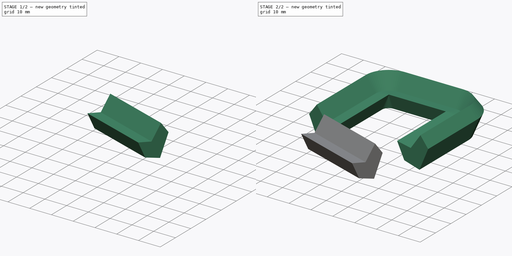
[diagram: build sequence overview — one tinted view per stage of 2, left to right]
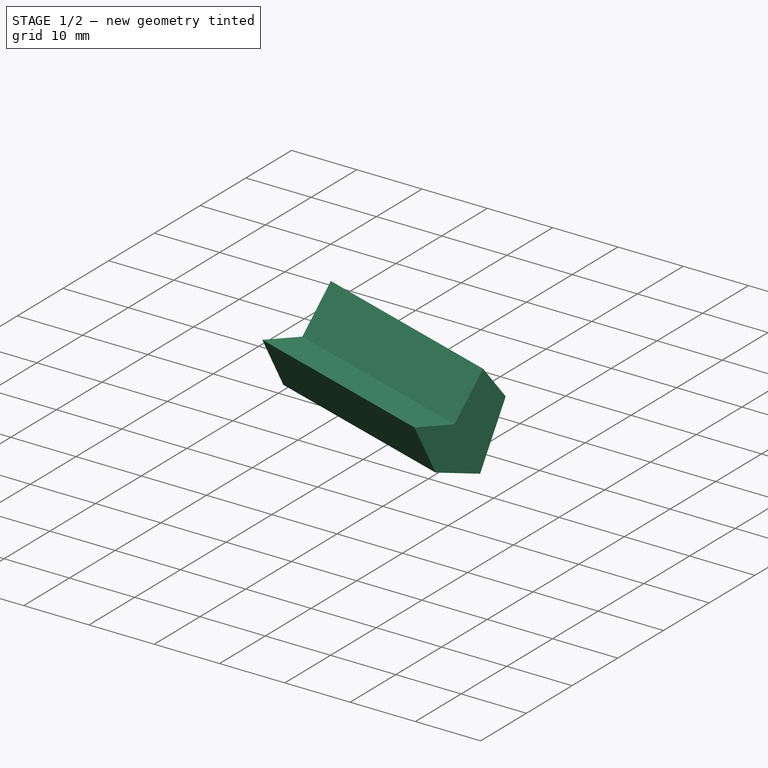
[diagram: stage 1 of 2 — iso view after this stage's code; geometry added in this stage tinted green]
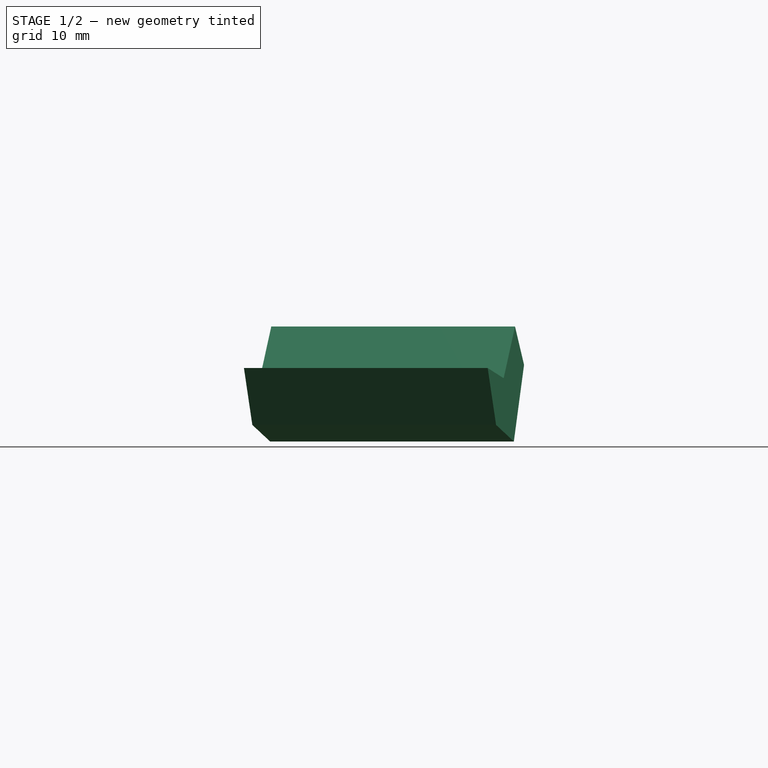
[diagram: stage 1 of 2 — front view after this stage's code; geometry added in this stage tinted green]
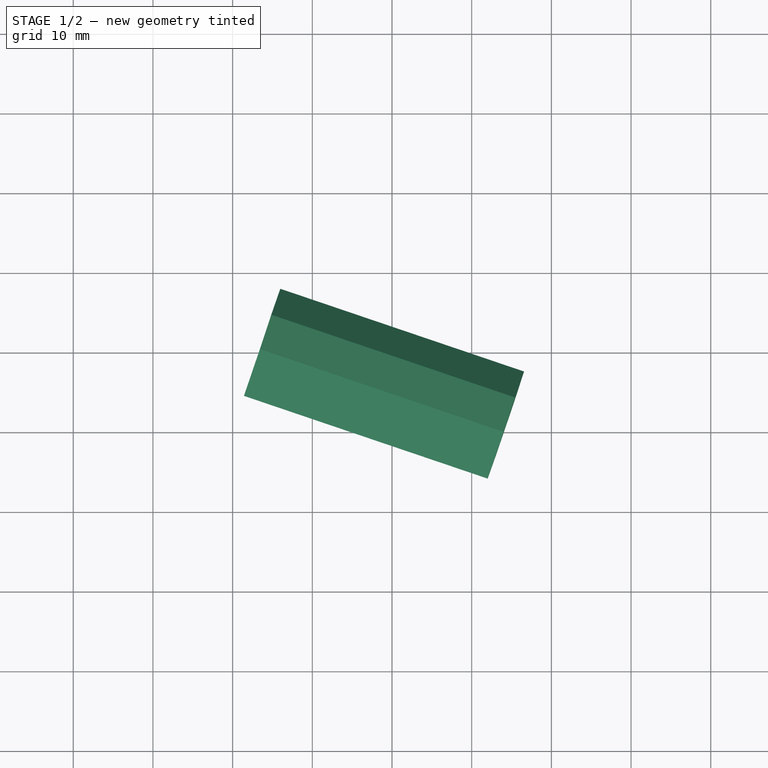
[diagram: stage 1 of 2 — top view after this stage's code; geometry added in this stage tinted green]
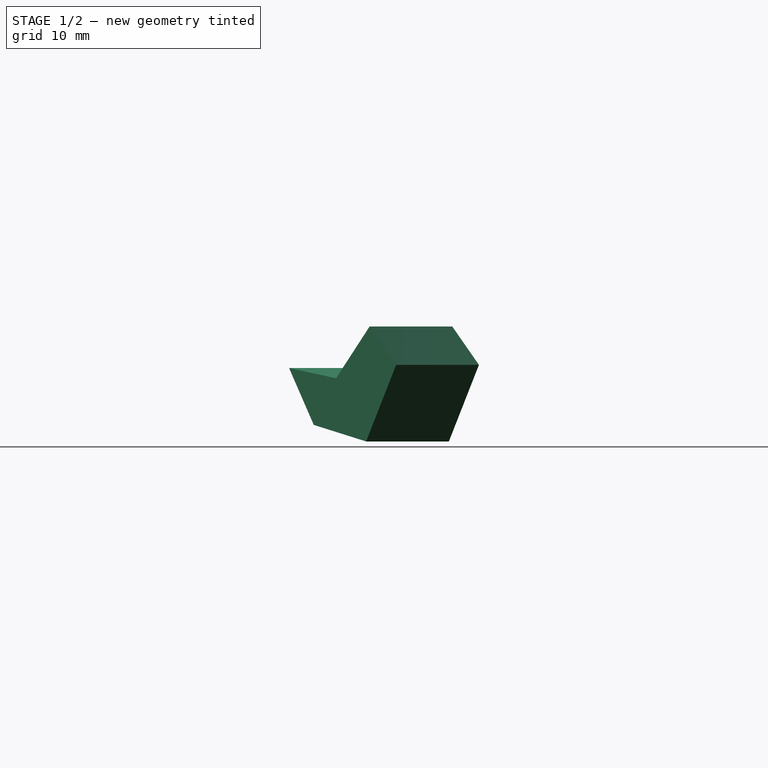
[diagram: stage 1 of 2 — right view after this stage's code; geometry added in this stage tinted green]
FCSTD DOCUMENT  (FreeCAD 0.21RUnknown)
Label: part30
License: All rights reserved
LicenseURL: http://en.wikipedia.org/wiki/All_rights_reserved
objects: Sketcher::SketchObject×4, Part::Part2DObjectPython×2, PartDesign::AdditivePipe×2, PartDesign::Body×2, App::DocumentObjectGroup×1
note: 12 computed .brp shape members not serialized (recipe doc carries the construction recipe); baked Part::Feature solids carry a one-line shape summary decoded from their .brp

FEATURE [PartDesign::Body] Body
  Group = -> [Sketch002,Clone2D,AdditivePipe]
  Origin = -> Origin
  Tip = -> AdditivePipe
FEATURE [Sketcher::SketchObject] Sketch003
  FullyConstrained = false
  MapMode = 5
  Support = -> [XY_Plane001]
  sketch-geometry (1):
    g0: LineSegment StartX=4.11143 StartY=-7.61421 StartZ=0 EndX=34.7007 EndY=-17.9995 EndZ=0
FEATURE [Part::Part2DObjectPython] Clone2D001  label="Profile1 (2D)001"  # Draft 2D object (typed FeaturePython)
  Fuse = false
  MapMode = 7
  Objects = -> [Sketch]
  Placement = pos=(4.11143,-7.61421,0) rot=(-0.451975,0.630761,0.630761;3.99058rad)
  Scale = (1,1,1)
  Support = -> [Sketch003]
FEATURE [PartDesign::AdditivePipe] AdditivePipe001
  AuxilleryCurvelinear = true
  AuxillerySpineTangent = false
  Binormal = (0,0,0)
  Mode = 0
  Profile = -> Clone2D001
  Spine = -> Sketch003
  SpineTangent = false
  Transformation = 0
  Transition = 0
FEATURE [PartDesign::Body] Body001
  Group = -> [Sketch003,Clone2D001,AdditivePipe001]
  Origin = -> Origin001
  Tip = -> AdditivePipe001
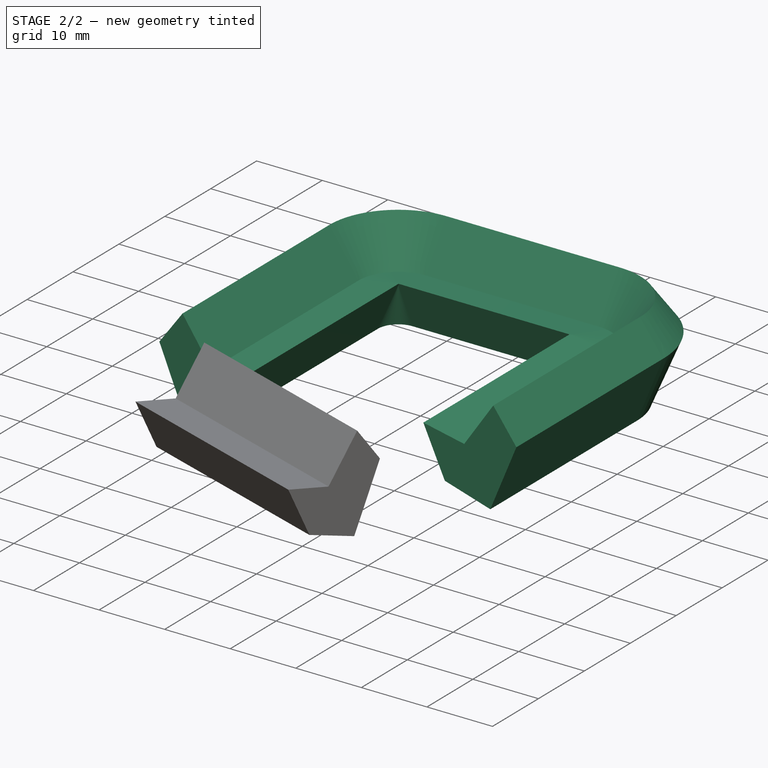
[diagram: stage 2 of 2 — iso view after this stage's code; geometry added in this stage tinted green]
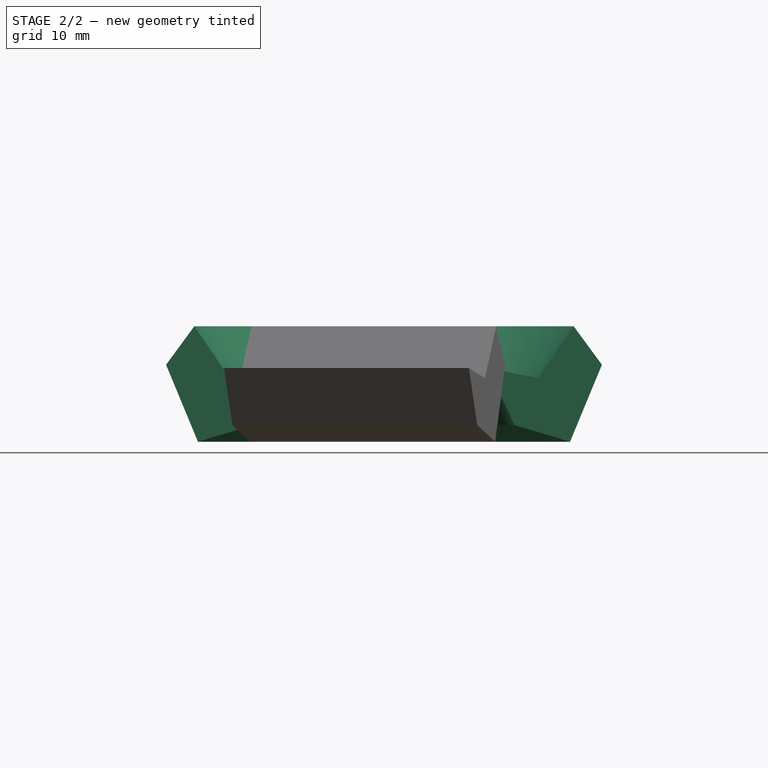
[diagram: stage 2 of 2 — front view after this stage's code; geometry added in this stage tinted green]
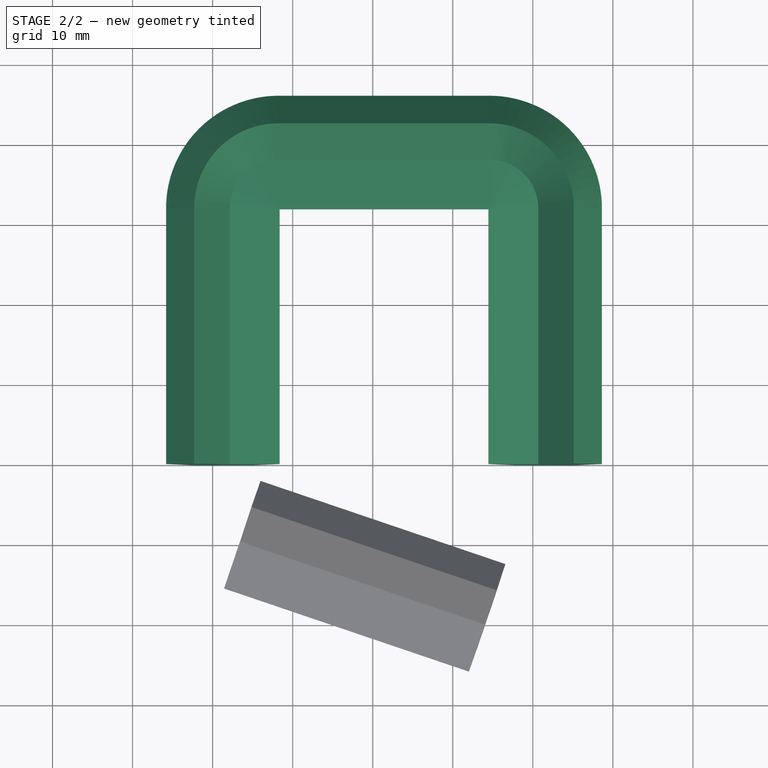
[diagram: stage 2 of 2 — top view after this stage's code; geometry added in this stage tinted green]
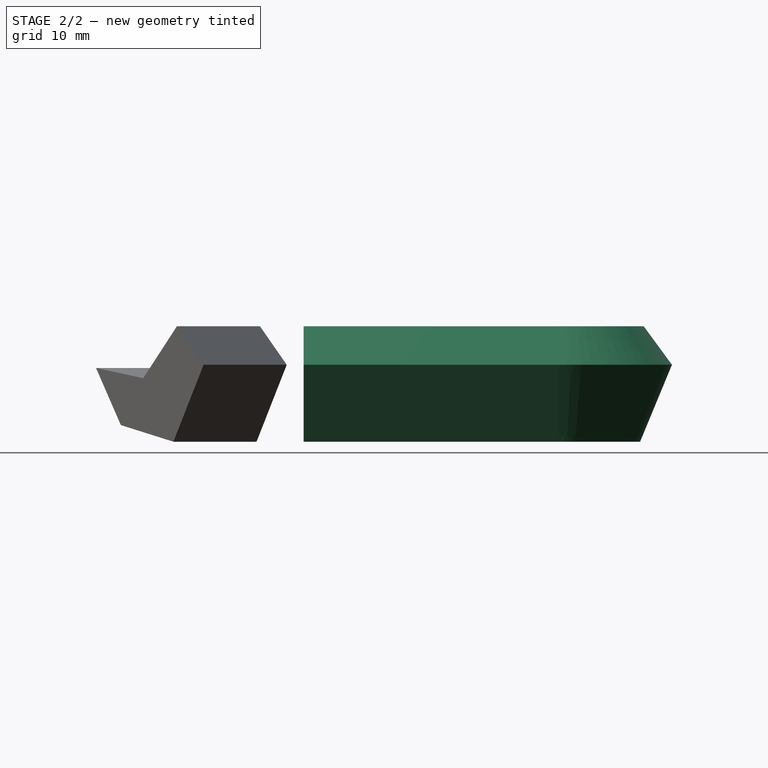
[diagram: stage 2 of 2 — right view after this stage's code; geometry added in this stage tinted green]
FEATURE [Sketcher::SketchObject] Sketch  label="Profile1"
  FullyConstrained = false
  sketch-geometry (6):
    g0: LineSegment StartX=-5.8172 StartY=4.40355 StartZ=0 EndX=-1.83614 EndY=-5.20787 EndZ=0
    g1: LineSegment StartX=-1.83614 StartY=-5.20787 StartZ=0 EndX=5.10228 EndY=-3.13203 EndZ=0
    g2: LineSegment StartX=5.10228 StartY=-3.13203 StartZ=0 EndX=8.37244 EndY=4.00545 EndZ=0
    g3: LineSegment StartX=8.37244 StartY=4.00545 StartZ=0 EndX=2.14492 EndY=2.72582 EndZ=0
    g4: LineSegment StartX=2.14492 StartY=2.72582 StartZ=0 EndX=-2.29112 EndY=9.20927 EndZ=0
    g5: LineSegment StartX=-2.29112 StartY=9.20927 StartZ=0 EndX=-5.8172 EndY=4.40355 EndZ=0
  constraints (6):
    c: Coincident(g0,g1)
    c: Coincident(g1,g2)
    c: Coincident(g2,g3)
    c: Coincident(g3,g4)
    c: Coincident(g4,g5)
    c: Coincident(g5,g0)
FEATURE [Sketcher::SketchObject] Sketch001  label="Profile2"
  FullyConstrained = false
  sketch-geometry (1):
    g0: Circle CenterX=0 CenterY=0 CenterZ=0 NormalX=0 NormalY=0 NormalZ=1 AngleXU=0 Radius=23.0164
  constraints (1):
    c: Coincident(g0,g-1)
FEATURE [App::DocumentObjectGroup] Group  label="ProfileTemplates"
  Group = -> [Sketch,Sketch001]
FEATURE [Sketcher::SketchObject] Sketch002  label="Path"
  FullyConstrained = false
  MapMode = 5
  Support = -> [XY_Plane]
  sketch-geometry (5):
    g0: LineSegment StartX=0 StartY=0 StartZ=0 EndX=0 EndY=31.9718 EndZ=0
    g1: LineSegment StartX=8.23149 StartY=40.2033 StartZ=0 EndX=34.5854 EndY=40.2033 EndZ=0
    g2: LineSegment StartX=42.8169 StartY=31.9718 StartZ=0 EndX=42.8169 EndY=0 EndZ=0
    g3: ArcOfCircle CenterX=8.23149 CenterY=31.9718 CenterZ=0 NormalX=0 NormalY=0 NormalZ=1 AngleXU=0 Radius=8.23149 StartAngle=1.5708 EndAngle=3.14159
    g4: ArcOfCircle CenterX=34.5854 CenterY=31.9718 CenterZ=0 NormalX=0 NormalY=0 NormalZ=1 AngleXU=0 Radius=8.23149 StartAngle=0 EndAngle=1.5708
  constraints (10):
    c: Coincident(g-1,g0)
    c: Horizontal(g1)
    c: PointOnObject(g2,g-1)
    c: Vertical(g2)
    c: Tangent(g0,g3) = 1.5708
    c: Tangent(g1,g3) = 1.5708
    c: Tangent(g1,g4) = 1.5708
    c: Tangent(g2,g4) = 1.5708
    c: Equal(g3,g4)
    c: Vertical(g0)
FEATURE [Part::Part2DObjectPython] Clone2D  label="Profile1 (2D)"  # Draft 2D object (typed FeaturePython)
  Fuse = false
  MapMode = 7
  Objects = -> [Sketch]
  Placement = pos=(0,0,0) rot=(1,0,0;1.5708rad)
  Scale = (1,1,1)
  Support = -> [Sketch002]
FEATURE [PartDesign::AdditivePipe] AdditivePipe
  AuxilleryCurvelinear = true
  AuxillerySpineTangent = false
  Binormal = (0,0,0)
  Mode = 0
  Profile = -> Clone2D
  Spine = -> Sketch002
  SpineTangent = false
  Transformation = 0
  Transition = 0
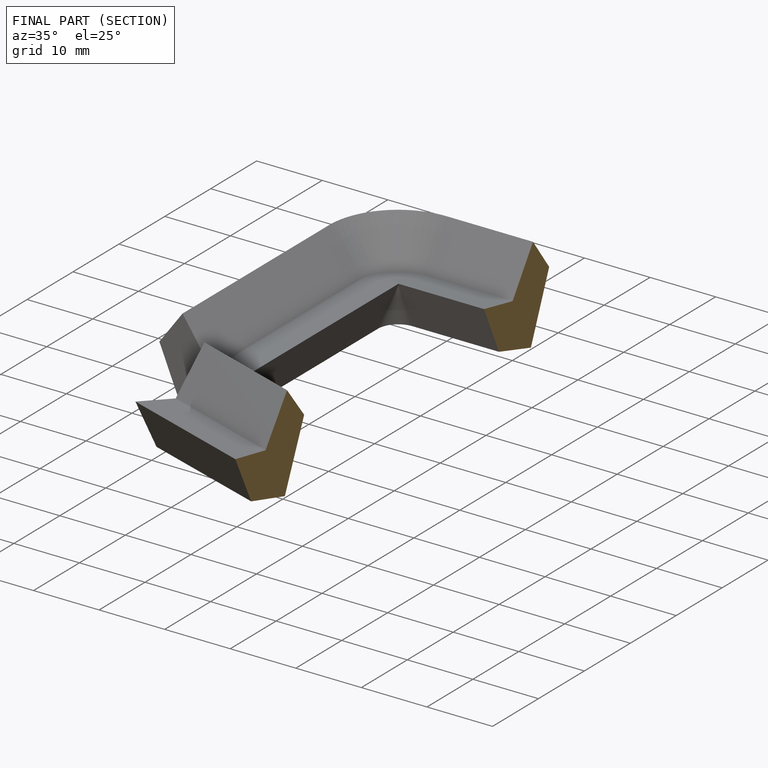
[diagram: finished part — half-section view (interior)]
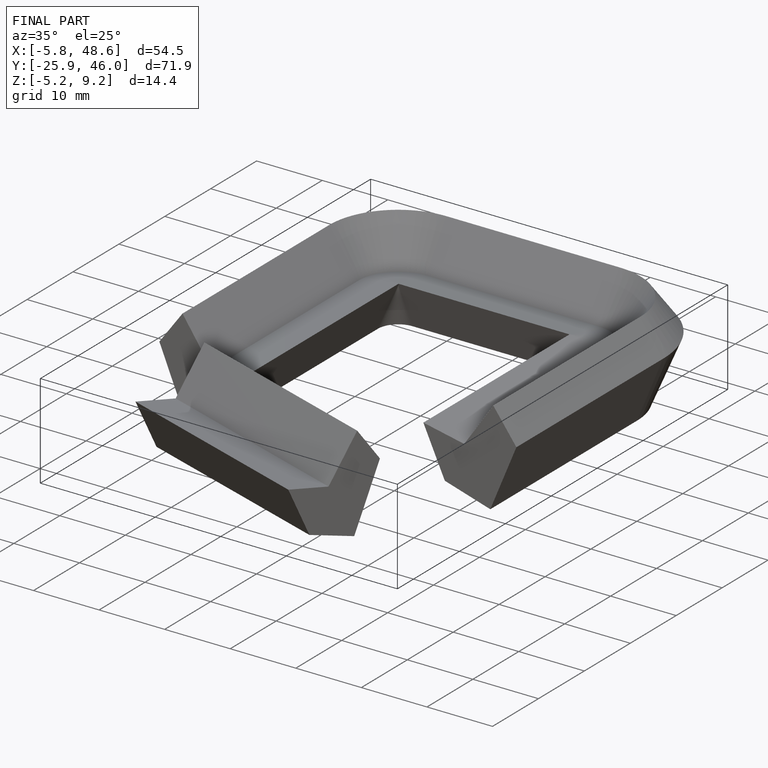
[diagram: finished part — iso view with bounding-box wireframe]
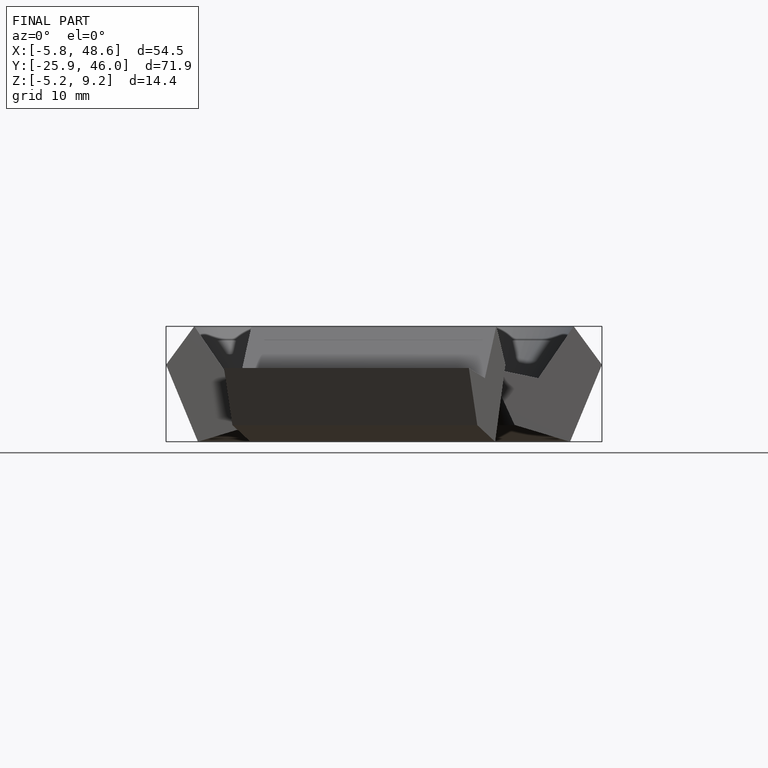
[diagram: finished part — front view with bounding-box wireframe]
